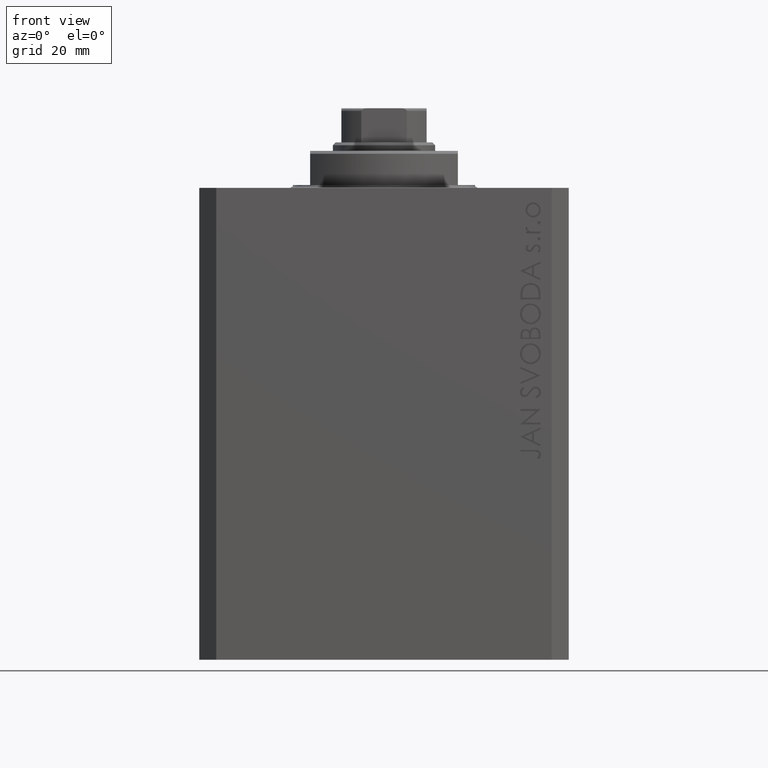
[diagram: clean part render]
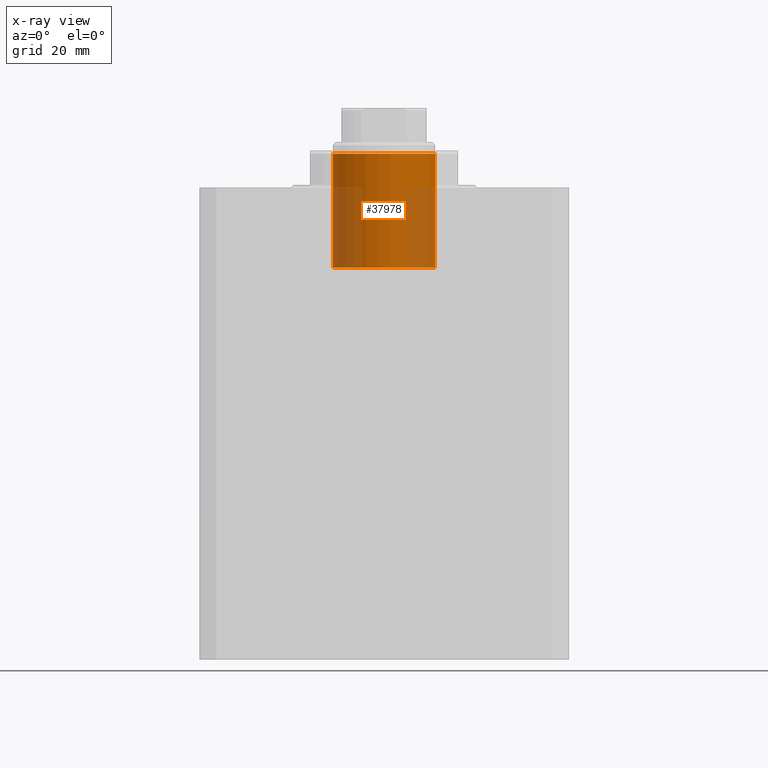
[diagram: x-ray — body ghosted, one internal face saturated and labeled with its STEP entity id]
A machine part, front view, then the same camera in x-ray: the body is ghosted and one INTERNAL B-rep face — a face not visible from any outside direction — is saturated and labeled: STEP entity #37978.
In plain terms, the highlighted cylindrical surface (partial cylindrical patch) has radius 9 mm, axis along (0, -0, 1).
Its self-contained STEP definition (entity closure, byte-faithful):
#1400 = DIRECTION ( 'NONE',  ( -0.000000000000000000, -0.000000000000000000, -1.000000000000000000 ) ) ;
#1625 = VERTEX_POINT ( 'NONE', #7495 ) ;
#2572 = EDGE_CURVE ( 'NONE', #40624, #7494, #19176, .T. ) ;
#3436 = DIRECTION ( 'NONE',  ( -0.000000000000000000, -0.000000000000000000, -1.000000000000000000 ) ) ;
#5848 = EDGE_CURVE ( 'NONE', #1625, #41895, #15317, .T. ) ;
#6944 = DIRECTION ( 'NONE',  ( 0.000000000000000000, 0.000000000000000000, -1.000000000000000000 ) ) ;
#7179 = CARTESIAN_POINT ( 'NONE',  ( 0.000000000000000000, 0.000000000000000000, 14.00000000000000178 ) ) ;
#7494 = VERTEX_POINT ( 'NONE', #17492 ) ;
#7495 = CARTESIAN_POINT ( 'NONE',  ( 9.000000000000000000, 1.102182119232617714E-15, 14.00000000000000178 ) ) ;
#10318 = ORIENTED_EDGE ( 'NONE', *, *, #46802, .F. ) ;
#10737 = CARTESIAN_POINT ( 'NONE',  ( -9.000000000000000000, 0.000000000000000000, 14.00000000000000178 ) ) ;
#12189 = ORIENTED_EDGE ( 'NONE', *, *, #35680, .T. ) ;
#12201 = CARTESIAN_POINT ( 'NONE',  ( 9.000000000000000000, 1.102182119232617714E-15, 14.00000000000000178 ) ) ;
#12250 = CARTESIAN_POINT ( 'NONE',  ( 0.000000000000000000, 0.000000000000000000, 14.00000000000000178 ) ) ;
#14953 = DIRECTION ( 'NONE',  ( -1.000000000000000000, 0.000000000000000000, 0.000000000000000000 ) ) ;
#15317 = CIRCLE ( 'NONE', #37555, 9.000000000000000000 ) ;
#17492 = CARTESIAN_POINT ( 'NONE',  ( -9.000000000000000000, 0.000000000000000000, -5.999999999999987566 ) ) ;
#18321 = ORIENTED_EDGE ( 'NONE', *, *, #2572, .T. ) ;
#18556 = FACE_OUTER_BOUND ( 'NONE', #45511, .T. ) ;
#19176 = CIRCLE ( 'NONE', #29902, 9.000000000000000000 ) ;
#19296 = DIRECTION ( 'NONE',  ( -1.000000000000000000, 0.000000000000000000, 0.000000000000000000 ) ) ;
#20367 = AXIS2_PLACEMENT_3D ( 'NONE', #12250, #33210, #14953 ) ;
#21893 = LINE ( 'NONE', #42805, #32946 ) ;
#23224 = CARTESIAN_POINT ( 'NONE',  ( 9.000000000000000000, 1.102182119232617714E-15, -5.999999999999987566 ) ) ;
#25400 = DIRECTION ( 'NONE',  ( -1.000000000000000000, 0.000000000000000000, 0.000000000000000000 ) ) ;
#26499 = CARTESIAN_POINT ( 'NONE',  ( 0.000000000000000000, 0.000000000000000000, -5.999999999999987566 ) ) ;
#29902 = AXIS2_PLACEMENT_3D ( 'NONE', #26499, #33705, #19296 ) ;
#32946 = VECTOR ( 'NONE', #3436, 1000.000000000000000 ) ;
#33210 = DIRECTION ( 'NONE',  ( -0.000000000000000000, -0.000000000000000000, -1.000000000000000000 ) ) ;
#33705 = DIRECTION ( 'NONE',  ( 0.000000000000000000, 0.000000000000000000, -1.000000000000000000 ) ) ;
#34346 = CYLINDRICAL_SURFACE ( 'NONE', #20367, 9.000000000000000000 ) ;
#35680 = EDGE_CURVE ( 'NONE', #1625, #40624, #44364, .T. ) ;
#37555 = AXIS2_PLACEMENT_3D ( 'NONE', #7179, #6944, #25400 ) ;
#37755 = ORIENTED_EDGE ( 'NONE', *, *, #5848, .F. ) ;
#37978 = ADVANCED_FACE ( 'NONE', ( #18556 ), #34346, .F. ) ;
#40256 = VECTOR ( 'NONE', #1400, 1000.000000000000000 ) ;
#40624 = VERTEX_POINT ( 'NONE', #23224 ) ;
#41895 = VERTEX_POINT ( 'NONE', #10737 ) ;
#42805 = CARTESIAN_POINT ( 'NONE',  ( -9.000000000000000000, 0.000000000000000000, 14.00000000000000178 ) ) ;
#44364 = LINE ( 'NONE', #12201, #40256 ) ;
#45511 = EDGE_LOOP ( 'NONE', ( #37755, #12189, #18321, #10318 ) ) ;
#46802 = EDGE_CURVE ( 'NONE', #41895, #7494, #21893, .T. ) ;